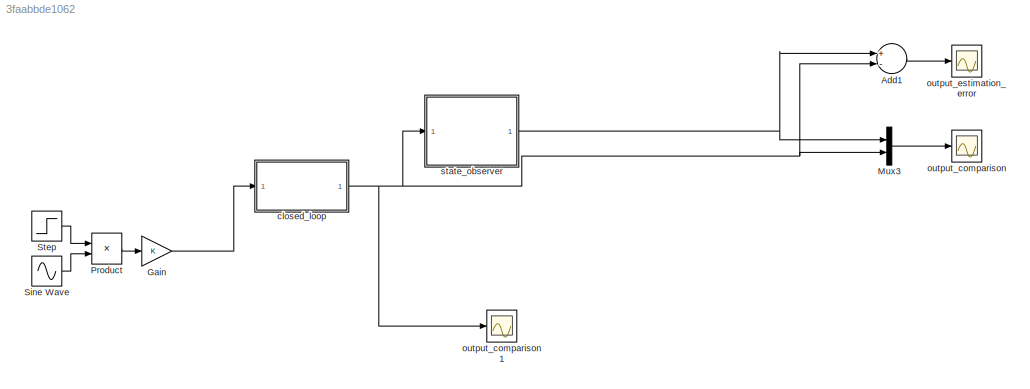
MODEL slx_3faabbde1062
KIND model
CONFIG AbsTol = auto
CONFIG FixedStep = 1e-4
CONFIG MaxStep = 1e-3
CONFIG MinStep = auto
CONFIG RelTol = 1e-3
CONFIG SampleTimeConstraint = Unconstrained
CONFIG Solver = ode45
CONFIG SolverMode = Auto
CONFIG SolverName = ode45
CONFIG StartTime = 0.0
CONFIG StopTime = 10
BLOCK [Sum] Add1
  InputSameDT = off
  Inputs = +-
  OutDataTypeStr = Inherit: Inherit via internal rule
  Ports = [2, 1]
  SaturateOnIntegerOverflow = off
BLOCK [Gain] Gain
  OutDataTypeStr = Inherit: Inherit via internal rule
  ParamDataTypeStr = Inherit: Inherit via internal rule
  SaturateOnIntegerOverflow = off
BLOCK [Mux] Mux3
  DisplayOption = bar
  Inputs = 2
  Ports = [2, 1]
BLOCK [Product] Product
  InputSameDT = off
  OutDataTypeStr = Inherit: Inherit via internal rule
  Ports = [2, 1]
  RndMeth = Floor
  SaturateOnIntegerOverflow = off
BLOCK [Sin] Sine Wave
  Frequency = 10
  Ports = [0, 1]
  SampleTime = 0
BLOCK [Step] Step
  After = 0
  Before = 8
  SampleTime = 0
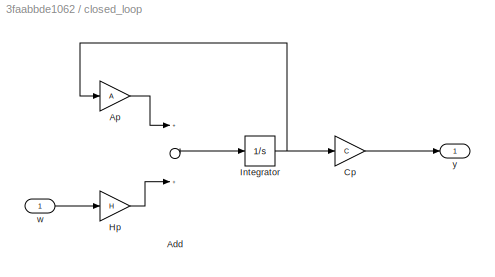
BLOCK [SubSystem] closed_loop
  Ports = [1, 1]
  RequestExecContextInheritance = off
BLOCK [Sum] closed_loop/Add
  InputSameDT = off
  OutDataTypeStr = Inherit: Inherit via internal rule
  Ports = [2, 1]
  SaturateOnIntegerOverflow = off
BLOCK [Gain] closed_loop/Ap
  Gain = A
  Multiplication = Matrix(K*u)
  OutDataTypeStr = Inherit: Inherit via internal rule
  ParamDataTypeStr = Inherit: Inherit via internal rule
  SaturateOnIntegerOverflow = off
BLOCK [Gain] closed_loop/Cp
  Gain = C
  Multiplication = Matrix(K*u)
  OutDataTypeStr = Inherit: Inherit via internal rule
  ParamDataTypeStr = Inherit: Inherit via internal rule
  SaturateOnIntegerOverflow = off
BLOCK [Gain] closed_loop/Hp
  Gain = H
  Multiplication = Matrix(K*u)
  OutDataTypeStr = Inherit: Inherit via internal rule
  ParamDataTypeStr = Inherit: Inherit via internal rule
  SaturateOnIntegerOverflow = off
BLOCK [Integrator] closed_loop/Integrator
  Ports = [1, 1]
BLOCK [Inport] closed_loop/w
  IconDisplay = Port number
BLOCK [Outport] closed_loop/y
  IconDisplay = Port number
BLOCK [Scope] output_comparison
  Floating = off
  LimitDataPoints = off
  NumInputPorts = 1
  Ports = [1]
  SaveName = ScopeData1
  YMax = 0.003
  YMin = -0.00125
BLOCK [Scope] output_comparison1
  Floating = off
  LimitDataPoints = off
  NumInputPorts = 1
  Ports = [1]
  SaveName = ScopeData5
  YMax = -2.1684e-19
  YMin = -0.0024
BLOCK [Scope] output_estimation_error
  Floating = off
  LimitDataPoints = off
  NumInputPorts = 1
  Ports = [1]
  SaveName = errorval
  SaveToWorkspace = on
  YMax = -2.1684e-19
  YMin = -0.0024
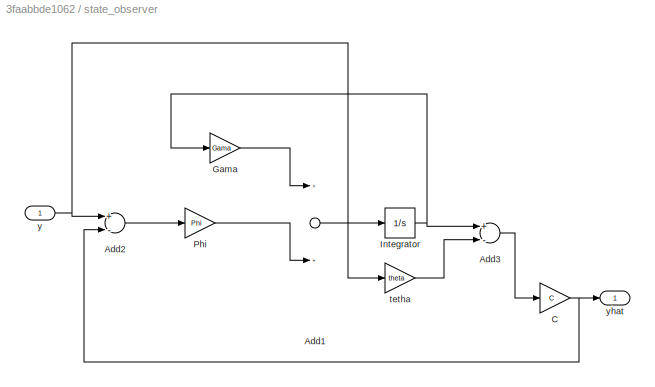
BLOCK [SubSystem] state_observer
  Ports = [1, 1]
  RequestExecContextInheritance = off
BLOCK [Sum] state_observer/Add1
  InputSameDT = off
  OutDataTypeStr = Inherit: Inherit via internal rule
  Ports = [2, 1]
  SaturateOnIntegerOverflow = off
BLOCK [Sum] state_observer/Add2
  InputSameDT = off
  Inputs = +-
  OutDataTypeStr = Inherit: Inherit via internal rule
  Ports = [2, 1]
  SaturateOnIntegerOverflow = off
BLOCK [Sum] state_observer/Add3
  InputSameDT = off
  Inputs = +-
  OutDataTypeStr = Inherit: Inherit via internal rule
  Ports = [2, 1]
  SaturateOnIntegerOverflow = off
BLOCK [Gain] state_observer/C
  Gain = C
  Multiplication = Matrix(K*u)
  OutDataTypeStr = Inherit: Inherit via internal rule
  ParamDataTypeStr = Inherit: Inherit via internal rule
  SaturateOnIntegerOverflow = off
BLOCK [Gain] state_observer/Gama
  Gain = Gama
  Multiplication = Matrix(K*u)
  OutDataTypeStr = Inherit: Inherit via internal rule
  ParamDataTypeStr = Inherit: Inherit via internal rule
  SaturateOnIntegerOverflow = off
BLOCK [Integrator] state_observer/Integrator
  Ports = [1, 1]
BLOCK [Gain] state_observer/Phi
  Gain = Phi
  Multiplication = Matrix(K*u)
  OutDataTypeStr = Inherit: Inherit via internal rule
  ParamDataTypeStr = Inherit: Inherit via internal rule
  SaturateOnIntegerOverflow = off
BLOCK [Gain] state_observer/tetha
  Gain = theta
  Multiplication = Matrix(K*u)
  OutDataTypeStr = Inherit: Inherit via internal rule
  ParamDataTypeStr = Inherit: Inherit via internal rule
  SaturateOnIntegerOverflow = off
BLOCK [Inport] state_observer/y
  IconDisplay = Port number
BLOCK [Outport] state_observer/yhat
  IconDisplay = Port number
LINE Add1:1 -> output_estimation_error:1
LINE Gain:1 -> closed_loop:1
LINE Mux3:1 -> output_comparison:1
LINE Product:1 -> Gain:1
LINE Sine Wave:1 -> Product:2
LINE Step:1 -> Product:1
LINE closed_loop/Add:1 -> closed_loop/Integrator:1
LINE closed_loop/Ap:1 -> closed_loop/Add:1
LINE closed_loop/Cp:1 -> closed_loop/y:1
LINE closed_loop/Hp:1 -> closed_loop/Add:2
NET closed_loop/Integrator:1 -> closed_loop/Ap:1, closed_loop/Cp:1
LINE closed_loop/w:1 -> closed_loop/Hp:1
NET closed_loop:1 -> Add1:2, Mux3:2, output_comparison1:1, state_observer:1
LINE state_observer/Add1:1 -> state_observer/Integrator:1
LINE state_observer/Add2:1 -> state_observer/Phi:1
LINE state_observer/Add3:1 -> state_observer/C:1
NET state_observer/C:1 -> state_observer/Add2:2, state_observer/yhat:1
LINE state_observer/Gama:1 -> state_observer/Add1:1
NET state_observer/Integrator:1 -> state_observer/Add3:1, state_observer/Gama:1
LINE state_observer/Phi:1 -> state_observer/Add1:2
LINE state_observer/tetha:1 -> state_observer/Add3:2
NET state_observer/y:1 -> state_observer/Add2:1, state_observer/tetha:1
NET state_observer:1 -> Add1:1, Mux3:1
note: NET lines group one-source signal fan-out (src -> all destinations, sorted); 1:1 wires keep LINE
